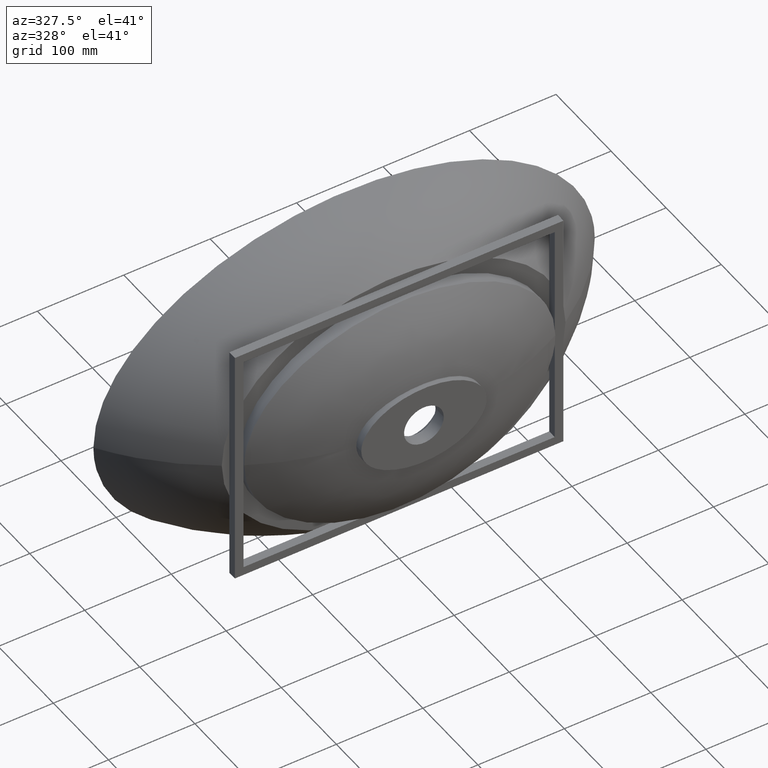
[diagram: clean part render]
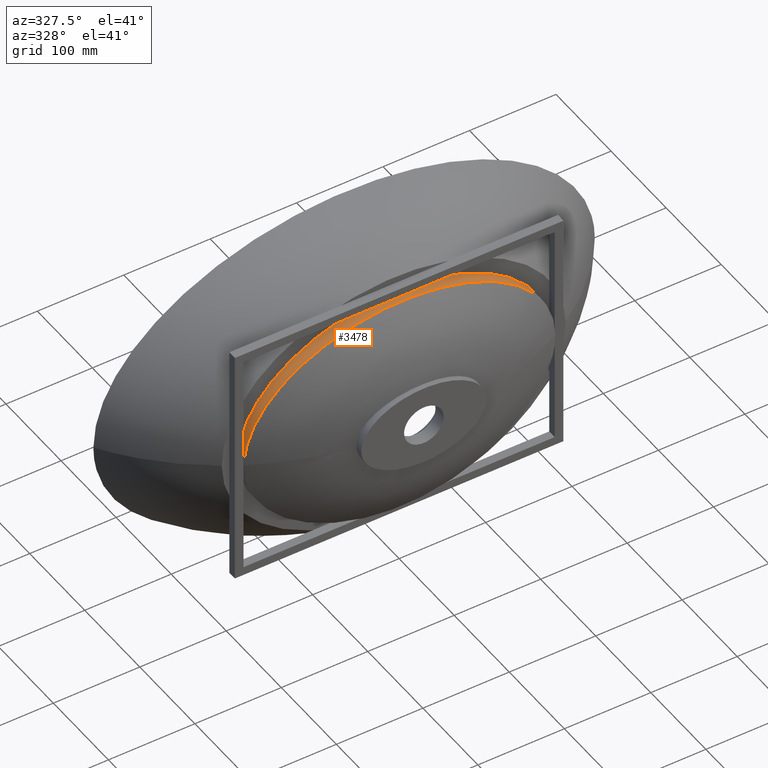
[diagram: same view with one face highlighted and labeled with its STEP entity id]
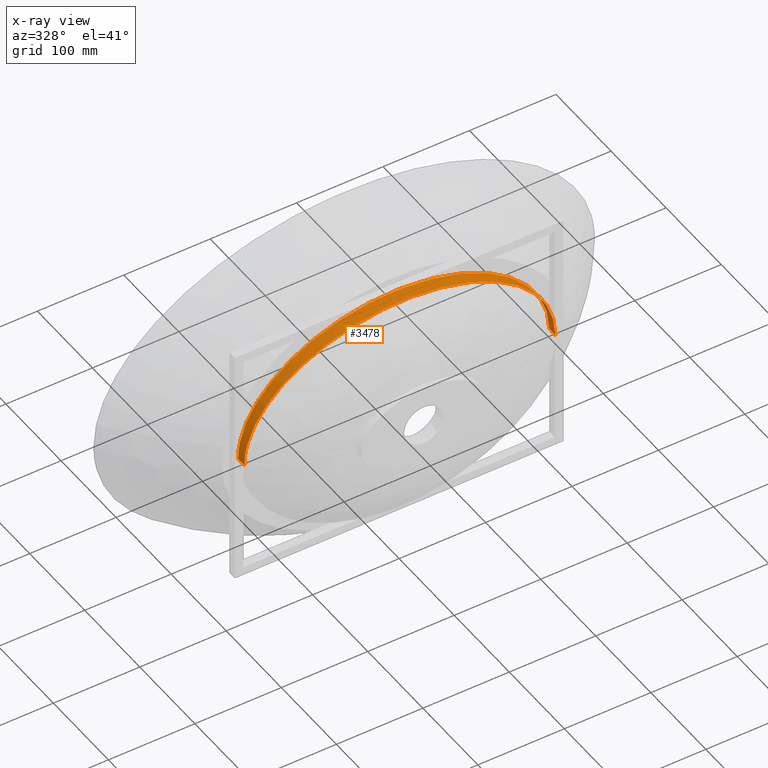
[diagram: x-ray of the same camera — body ghosted, the highlighted face saturated]
A machine part, auxiliary view. The second image highlights one B-rep face of the part: STEP entity #3478.
The next image is the same camera in x-ray: the body ghosted, the highlighted face saturated — about 0% of this face is hidden behind the body in this view.
In plain terms, the highlighted face is a freeform B-spline surface patch.
Its self-contained STEP definition (entity closure, byte-faithful):
#4 = VERTEX_POINT ( 'NONE', #3772 ) ;
#53 = ORIENTED_EDGE ( 'NONE', *, *, #2044, .T. ) ;
#79 = CARTESIAN_POINT ( 'NONE',  ( -180.0000000000001700, -95.56989333808076000, -1.528725063204561300E-014 ) ) ;
#83 = CARTESIAN_POINT ( 'NONE',  ( 175.7154632842174100, -100.4621571564373700, 34.59006907661986200 ) ) ;
#91 = CARTESIAN_POINT ( 'NONE',  ( -90.72556355375027700, -91.23597569220902400, -115.9231261459887500 ) ) ;
#93 = CARTESIAN_POINT ( 'NONE',  ( -179.1916491264617500, -100.2578480365885400, -15.55184997458093900 ) ) ;
#106 = CARTESIAN_POINT ( 'NONE',  ( 175.7494944251472800, -92.85331558812257000, -34.66080013360836900 ) ) ;
#120 = CARTESIAN_POINT ( 'NONE',  ( 182.1252527874266600, -92.75076220950003900, -1.356712098000722500E-010 ) ) ;
#140 = CARTESIAN_POINT ( 'NONE',  ( 175.7239710694492200, -98.55994676435773300, 34.60775184080230800 ) ) ;
#145 = CARTESIAN_POINT ( 'NONE',  ( 90.74366534924344300, -90.00000000000004300, 115.9335179656755200 ) ) ;
#151 = CARTESIAN_POINT ( 'NONE',  ( -157.5619450238705800, -102.3704272196283800, 66.43164022772515400 ) ) ;
#158 = CARTESIAN_POINT ( 'NONE',  ( -179.1931848768636000, -98.39278475721332000, 15.55975315012037200 ) ) ;
#188 = CARTESIAN_POINT ( 'NONE',  ( 47.33615572003558500, -90.00000000000005700, 129.3292097853542700 ) ) ;
#201 = CARTESIAN_POINT ( 'NONE',  ( -174.5012584337427200, -101.4770733436339900, 36.70458853025227300 ) ) ;
#228 = CARTESIAN_POINT ( 'NONE',  ( -90.72556355373461700, -91.23597569221163900, 115.9231261460388300 ) ) ;
#302 = CARTESIAN_POINT ( 'NONE',  ( -179.9999999999998300, -98.35484000712122600, -1.647987302177966700E-014 ) ) ;
#307 = CARTESIAN_POINT ( 'NONE',  ( -180.0000000000001700, -98.35484000712097000, -1.730387592048581200 ) ) ;
#332 = CARTESIAN_POINT ( 'NONE',  ( -179.9363700331559200, -90.92865740094217100, -4.045823004726423200 ) ) ;
#374 = ORIENTED_EDGE ( 'NONE', *, *, #3423, .T. ) ;
#391 = CARTESIAN_POINT ( 'NONE',  ( 90.63505457641083800, -97.41585415324522000, 115.8711670472130900 ) ) ;
#403 = CARTESIAN_POINT ( 'NONE',  ( 175.7154632842214100, -100.4621571564495900, -34.59006907696557000 ) ) ;
#414 = CARTESIAN_POINT ( 'NONE',  ( -174.5062503022387500, -100.5206505649978200, 36.71365888221637900 ) ) ;
#423 = CARTESIAN_POINT ( 'NONE',  ( -179.1993278785008100, -90.93253163968988400, -15.59136585227095200 ) ) ;
#426 = FACE_OUTER_BOUND ( 'NONE', #566, .T. ) ;
#427 = CARTESIAN_POINT ( 'NONE',  ( 47.21882009002048600, -101.8416548802293300, 129.3032463717921700 ) ) ;
#444 = CARTESIAN_POINT ( 'NONE',  ( 157.6998568011472100, -93.09260680489499900, 66.54212359993104500 ) ) ;
#461 = CARTESIAN_POINT ( 'NONE',  ( -90.74366534921649900, -90.00000000000005700, 115.9335179657776400 ) ) ;
#479 = CARTESIAN_POINT ( 'NONE',  ( -157.6079156163115400, -99.27782041470301500, -66.46846801849007100 ) ) ;
#481 = CARTESIAN_POINT ( 'NONE',  ( -180.0000000000000000, -100.2114711198147900, -6.179952383167375300E-015 ) ) ;
#509 = CARTESIAN_POINT ( 'NONE',  ( -180.0000000000001700, -92.78494666904039400, -1.733040006674254800 ) ) ;
#511 = CARTESIAN_POINT ( 'NONE',  ( -90.74366534921649900, -90.00000000000005700, 115.9335179657776400 ) ) ;
#527 = CARTESIAN_POINT ( 'NONE',  ( 128.7159219635056500, -90.00000000000000000, -94.49894374019133600 ) ) ;
#538 = CARTESIAN_POINT ( 'NONE',  ( -180.0000000000000900, -90.00000000000002800, -1.734366213987071200 ) ) ;
#541 = CARTESIAN_POINT ( 'NONE',  ( 157.5772685547476900, -101.3395582846153100, 66.44391615774300400 ) ) ;
#549 = CARTESIAN_POINT ( 'NONE',  ( -174.5561689871985000, -90.95642277863621000, 36.80436240185746000 ) ) ;
#552 = CARTESIAN_POINT ( 'NONE',  ( 5.851848743575899700E-013, -98.09954334406643300, -134.0940495784933500 ) ) ;
#566 = EDGE_LOOP ( 'NONE', ( #3384, #53, #374, #629 ) ) ;
#573 = CARTESIAN_POINT ( 'NONE',  ( -157.6998568011296700, -93.09260680490101000, -66.54212360009081800 ) ) ;
#583 = CARTESIAN_POINT ( 'NONE',  ( 5.740810446090453600E-011, -106.1990866881335800, 134.1027040496849200 ) ) ;
#587 = CARTESIAN_POINT ( 'NONE',  ( -179.9999999999996300, -100.2114711198151000, 1.729503453839970700 ) ) ;
#593 = B_SPLINE_CURVE_WITH_KNOTS ( 'NONE', 3,
 ( #1196, #2966, #2944, #2941, #2933, #2929, #2921 ),
 .UNSPECIFIED., .F., .F.,
 ( 4, 1, 1, 1, 4 ),
 ( 0.4270840971521632800, 0.4407287458203837900, 0.4543733944886043700, 0.4680180431568248800, 0.4816626918250454000 ),
 .UNSPECIFIED. ) ;
#599 = CARTESIAN_POINT ( 'NONE',  ( -157.5619450239026400, -102.3704272196040300, -66.43164022768967000 ) ) ;
#604 = CARTESIAN_POINT ( 'NONE',  ( -174.5461852502132300, -92.86926833590503300, -36.78622169792159000 ) ) ;
#610 = CARTESIAN_POINT ( 'NONE',  ( -180.0000000000000000, -100.2114711198147900, -6.179952383167375300E-015 ) ) ;
#627 = CARTESIAN_POINT ( 'NONE',  ( -157.6538862087208500, -96.18521360980203400, -66.50529580929027400 ) ) ;
#629 = ORIENTED_EDGE ( 'NONE', *, *, #3048, .F. ) ;
#658 = CARTESIAN_POINT ( 'NONE',  ( -90.58074918987945500, -101.1237812299042700, 115.8399915881284100 ) ) ;
#683 = CARTESIAN_POINT ( 'NONE',  ( -179.9360509912102100, -95.57194440565280000, -4.040665531843173700 ) ) ;
#686 = CARTESIAN_POINT ( 'NONE',  ( -90.58074918992846800, -101.1237812298810500, -115.8399915880600200 ) ) ;
#729 = CARTESIAN_POINT ( 'NONE',  ( -179.9999999999998300, -98.35484000712122600, -1.647987302177966700E-014 ) ) ;
#740 = CARTESIAN_POINT ( 'NONE',  ( 157.6079156162840300, -99.27782041473251700, -66.46846801869855900 ) ) ;
#752 = CARTESIAN_POINT ( 'NONE',  ( -157.7305038627356700, -91.03086893496698900, -66.56667546062425300 ) ) ;
#761 = CARTESIAN_POINT ( 'NONE',  ( -179.9999999999999400, -90.00000000000002800, 1.734366213987025700 ) ) ;
#763 = CARTESIAN_POINT ( 'NONE',  ( 90.72556355374614200, -91.23597569221159600, -115.9231261460735900 ) ) ;
#776 = CARTESIAN_POINT ( 'NONE',  ( 4.572407379216915000E-011, -102.1493150161001200, 134.0983768140924300 ) ) ;
#778 = CARTESIAN_POINT ( 'NONE',  ( 90.68935996282706900, -93.70792707662236900, 115.9023425064445400 ) ) ;
#793 = CARTESIAN_POINT ( 'NONE',  ( -179.2000957537033500, -90.00000000000002800, 15.59531744004093700 ) ) ;
#796 = CARTESIAN_POINT ( 'NONE',  ( -90.63505457632527400, -97.41585415326972000, 115.8711670473446700 ) ) ;
#823 = CARTESIAN_POINT ( 'NONE',  ( 179.9999999999999400, -89.99999999999994300, -7.299477223001792000E-010 ) ) ;
#840 = CARTESIAN_POINT ( 'NONE',  ( -47.33615572001483700, -90.00000000000005700, 129.3292097853867200 ) ) ;
#860 = CARTESIAN_POINT ( 'NONE',  ( 175.7580022103788100, -90.95110519604088500, -34.67848289776895900 ) ) ;
#875 = CARTESIAN_POINT ( 'NONE',  ( -179.9363700331554400, -90.92865740094228500, 4.045823004726465800 ) ) ;
#909 = CARTESIAN_POINT ( 'NONE',  ( 128.4670743711715200, -103.6010677630313200, 94.33018502781946800 ) ) ;
#925 = CARTESIAN_POINT ( 'NONE',  ( -90.52644380349538300, -104.8317083065081200, -115.8088161288365800 ) ) ;
#950 = CARTESIAN_POINT ( 'NONE',  ( 128.4878116705342000, -102.4676454494454300, 94.34424825383258900 ) ) ;
#980 = CARTESIAN_POINT ( 'NONE',  ( -128.5914981673082900, -96.80053388152751400, -94.41456438402450100 ) ) ;
#1045 = CARTESIAN_POINT ( 'NONE',  ( -180.0000000000000000, -90.92831555634681700, -7.372574772901430200E-015 ) ) ;
#1047 = CARTESIAN_POINT ( 'NONE',  ( 175.7239710694527200, -98.55994676436773700, -34.60775184112628000 ) ) ;
#1058 = CARTESIAN_POINT ( 'NONE',  ( 90.52644380347911100, -104.8317083065391400, -115.8088161289642700 ) ) ;
#1071 = CARTESIAN_POINT ( 'NONE',  ( -174.5312096447290200, -95.73853667180995300, -36.75901064202818000 ) ) ;
#1074 = CARTESIAN_POINT ( 'NONE',  ( 182.1316336263506600, -95.50152441900026200, -1.527468458331060700E-010 ) ) ;
#1085 = CARTESIAN_POINT ( 'NONE',  ( 2.237335968945833900E-011, -94.04977167203327300, 134.0897223429074900 ) ) ;
#1128 = CARTESIAN_POINT ( 'NONE',  ( 157.7458273935322400, -89.99999999999997200, -66.57895139103656800 ) ) ;
#1138 = CARTESIAN_POINT ( 'NONE',  ( 1.070667625548282000E-011, -90.00000000000008500, 134.0853951073148100 ) ) ;
#1140 = CARTESIAN_POINT ( 'NONE',  ( -180.0000000000004000, -95.56989333808057600, -1.731713799361409800 ) ) ;
#1159 = CARTESIAN_POINT ( 'NONE',  ( 175.7580022103775500, -90.95110519603972000, 34.67848289753197800 ) ) ;
#1196 = CARTESIAN_POINT ( 'NONE',  ( 179.9999999999998900, -101.1397866761614900, -7.627155560823910400E-010 ) ) ;
#1209 = CARTESIAN_POINT ( 'NONE',  ( 175.7112093916013300, -101.4132623524770900, 34.58122769452865700 ) ) ;
#1225 = CARTESIAN_POINT ( 'NONE',  ( -179.1908812512578500, -101.1903796762784100, -15.54789838681193900 ) ) ;
#1272 = CARTESIAN_POINT ( 'NONE',  ( -128.7159219635021800, -90.00000000000002800, 94.49894374011435600 ) ) ;
#1312 = CARTESIAN_POINT ( 'NONE',  ( 47.25793196665192400, -97.89443658682944300, -129.3119008430395000 ) ) ;
#1316 = CARTESIAN_POINT ( 'NONE',  ( 128.5914981672912600, -96.80053388154733800, -94.41456438417436900 ) ) ;
#1329 = CARTESIAN_POINT ( 'NONE',  ( 128.5914981673475400, -96.80053388151587500, 94.41456438389809600 ) ) ;
#1341 = CARTESIAN_POINT ( 'NONE',  ( -47.21882008996965400, -101.8416548802310000, -129.3032463717997000 ) ) ;
#1380 = CARTESIAN_POINT ( 'NONE',  ( 157.5619450238681100, -102.3704272196435200, -66.43164022791916100 ) ) ;
#1392 = CARTESIAN_POINT ( 'NONE',  ( 128.6537100653984000, -93.40026694077346300, -94.45675406218308000 ) ) ;
#1401 = CARTESIAN_POINT ( 'NONE',  ( 175.7622561033006700, -89.99999999999992900, 34.68732427907950500 ) ) ;
#1406 = CARTESIAN_POINT ( 'NONE',  ( -90.68935996277085100, -93.70792707663471800, 115.9023425065613500 ) ) ;
#1431 = B_SPLINE_CURVE_WITH_KNOTS ( 'NONE', 3,
 ( #3037, #4069, #2890, #2877, #2909, #2865, #2844, #2831, #2671, #2646, #2645, #2493, #2588, #2578, #2514, #2565, #2523 ),
 .UNSPECIFIED., .F., .F.,
 ( 4, 1, 1, 1, 1, 1, 1, 1, 1, 1, 1, 1, 1, 1, 4 ),
 ( 0.4999999999999999400, 0.5416666666647493900, 0.5833333333315902100, 0.6249999999984312500, 0.6666666666652723000, 0.7083333333321131200, 0.7499999999999280600, 0.7916666666657951000, 0.8333333333326361500, 0.8749999999994770800, 0.9166666666663179100, 0.9583333333331589500, 0.9916666666666318400, 0.9937499999999738200, 1.000000000000000000 ),
 .UNSPECIFIED. ) ;
#1453 = CARTESIAN_POINT ( 'NONE',  ( 182.1188719485028900, -89.99999999999994300, -1.185435320627593100E-010 ) ) ;
#1470 = CARTESIAN_POINT ( 'NONE',  ( -174.5611608556944800, -90.00000000000002800, 36.81343275382155900 ) ) ;
#1472 = CARTESIAN_POINT ( 'NONE',  ( 47.19274550557273100, -104.4731337425026400, 129.2974767243338500 ) ) ;
#1482 = CARTESIAN_POINT ( 'NONE',  ( -47.33615572002373300, -90.00000000000002800, -129.3292097853594700 ) ) ;
#1492 = CARTESIAN_POINT ( 'NONE',  ( 128.6951846641606800, -91.13342231358596700, 94.48488051396383000 ) ) ;
#1504 = CARTESIAN_POINT ( 'NONE',  ( -180.0000000000000000, -90.00000000000002800, -7.480994990149980600E-015 ) ) ;
#1521 = CARTESIAN_POINT ( 'NONE',  ( -174.5162340392305100, -98.60780500772550300, 36.73179958614461100 ) ) ;
#1544 = CARTESIAN_POINT ( 'NONE',  ( 128.6951846641365800, -91.13342231359121100, -94.48488051418851800 ) ) ;
#1630 = CARTESIAN_POINT ( 'NONE',  ( -47.25793196665443200, -97.89443658682098700, -129.3119008429860600 ) ) ;
#1689 = CARTESIAN_POINT ( 'NONE',  ( 157.6538862087474800, -96.18521360979029600, 66.50529580911039300 ) ) ;
#1698 = CARTESIAN_POINT ( 'NONE',  ( -179.9999999999998600, -92.78494666904056500, 1.733040006674180700 ) ) ;
#1710 = CARTESIAN_POINT ( 'NONE',  ( 182.1443953041980400, -101.0030488380003800, -1.869570984973563100E-010 ) ) ;
#1712 = CARTESIAN_POINT ( 'NONE',  ( -128.4878116704282100, -102.4676454494952900, 94.34424825404271100 ) ) ;
#1723 = CARTESIAN_POINT ( 'NONE',  ( 90.63505457635210400, -97.41585415326979100, -115.8711670473874300 ) ) ;
#1725 = CARTESIAN_POINT ( 'NONE',  ( 47.29704384333739900, -93.94721829341443700, -129.3205553142205100 ) ) ;
#1731 = CARTESIAN_POINT ( 'NONE',  ( 179.9999999999999400, -89.99999999999994300, -7.299477223001792000E-010 ) ) ;
#1737 = CARTESIAN_POINT ( 'NONE',  ( -128.6537100654096000, -93.40026694076367200, -94.45675406204998100 ) ) ;
#1741 = CARTESIAN_POINT ( 'NONE',  ( -179.9357319492641200, -100.2152314103635400, -4.035508058959917900 ) ) ;
#1748 = CARTESIAN_POINT ( 'NONE',  ( 1.070667625548282000E-011, -90.00000000000008500, 134.0853951073148100 ) ) ;
#1777 = CARTESIAN_POINT ( 'NONE',  ( -128.5914981672801200, -96.80053388154297500, 94.41456438407519200 ) ) ;
#1786 = CARTESIAN_POINT ( 'NONE',  ( 175.7622561029945400, -89.99999999999998600, -34.68732427984929200 ) ) ;
#1797 = CARTESIAN_POINT ( 'NONE',  ( 47.17970821328089700, -105.7888731736583900, -129.2945919006783100 ) ) ;
#1799 = CARTESIAN_POINT ( 'NONE',  ( 90.54454559905016700, -103.5957326142824700, 115.8192079484946200 ) ) ;
#1810 = CARTESIAN_POINT ( 'NONE',  ( 157.5772685546734800, -101.3395582846732300, -66.44391615817893600 ) ) ;
#1823 = CARTESIAN_POINT ( 'NONE',  ( 47.32311842781169300, -91.31573943113664900, 129.3263249616251500 ) ) ;
#1833 = CARTESIAN_POINT ( 'NONE',  ( -179.2000957537047200, -90.00000000000001400, -15.59531744003995300 ) ) ;
#1852 = CARTESIAN_POINT ( 'NONE',  ( -180.0000000000000000, -92.78494666904048000, -2.179246366695863900E-014 ) ) ;
#1859 = EDGE_CURVE ( 'NONE', #3724, #4, #1431, .T. ) ;
#1888 = CARTESIAN_POINT ( 'NONE',  ( -179.9999999999999700, -101.1397866761616100, -6.071532165918824800E-015 ) ) ;
#1945 = CARTESIAN_POINT ( 'NONE',  ( -179.1954885024771600, -95.59518983814216100, 15.57160791342719500 ) ) ;
#1954 = CARTESIAN_POINT ( 'NONE',  ( -180.0000000000000000, -90.00000000000002800, -7.480994990149980600E-015 ) ) ;
#1959 = B_SPLINE_CURVE_WITH_KNOTS ( 'NONE', 3,
 ( #1731, #4016, #1401, #3291, #2385, #145, #2082, #1748, #2248, #461, #1272, #3146, #3512, #793, #2676, #2971, #1954 ),
 .UNSPECIFIED., .F., .F.,
 ( 4, 1, 1, 1, 1, 1, 1, 1, 1, 1, 1, 1, 1, 1, 4 ),
 ( 0.4999999999999605900, 0.5416666666647134100, 0.5833333333315574600, 0.6249999999984017200, 0.6666666666652461000, 0.7083333333320902500, 0.7499999999999084100, 0.7916666666657787800, 0.8333333333326230500, 0.8749999999994672000, 0.9166666666663114700, 0.9583333333331558500, 0.9916666666666311700, 0.9937499999999733800, 1.000000000000000000 ),
 .UNSPECIFIED. ) ;
#1990 = CARTESIAN_POINT ( 'NONE',  ( -174.5062503022548100, -100.5206505649849600, -36.71365888220606900 ) ) ;
#1999 = CARTESIAN_POINT ( 'NONE',  ( -179.1993278784989600, -90.93253163969039600, 15.59136585227198400 ) ) ;
#2002 = CARTESIAN_POINT ( 'NONE',  ( 175.7367327473002700, -95.70663117624532400, -34.63427598736722500 ) ) ;
#2009 = CARTESIAN_POINT ( 'NONE',  ( -180.0000000000000000, -90.00000000000002800, -7.480994990149980600E-015 ) ) ;
#2010 = CARTESIAN_POINT ( 'NONE',  ( -180.0000000000000000, -90.92831555634681700, -7.372574772901430200E-015 ) ) ;
#2014 = CARTESIAN_POINT ( 'NONE',  ( -128.4878116704724100, -102.4676454494669100, -94.34424825398257000 ) ) ;
#2021 = CARTESIAN_POINT ( 'NONE',  ( -180.0000000000000000, -92.78494666904048000, -2.179246366695863900E-014 ) ) ;
#2026 = CARTESIAN_POINT ( 'NONE',  ( -174.5461852502065500, -92.86926833590857200, 36.78622169792927100 ) ) ;
#2037 = CARTESIAN_POINT ( 'NONE',  ( -180.0000000000001700, -95.56989333808076000, -1.528725063204561300E-014 ) ) ;
#2041 = CARTESIAN_POINT ( 'NONE',  ( -179.9999999999998300, -98.35484000712122600, -1.647987302177966700E-014 ) ) ;
#2043 = CARTESIAN_POINT ( 'NONE',  ( -179.9999999999999700, -101.1397866761616100, -6.071532165918824800E-015 ) ) ;
#2044 = EDGE_CURVE ( 'NONE', #3724, #3721, #593, .T. ) ;
#2045 = CARTESIAN_POINT ( 'NONE',  ( -47.19274550551325100, -104.4731337425046900, -129.2974767243418100 ) ) ;
#2053 = CARTESIAN_POINT ( 'NONE',  ( -180.0000000000000000, -100.2114711198147900, -6.179952383167375300E-015 ) ) ;
#2057 = CARTESIAN_POINT ( 'NONE',  ( -47.29704384333903300, -93.94721829341024500, -129.3205553141730800 ) ) ;
#2070 = CARTESIAN_POINT ( 'NONE',  ( -179.9356681408730500, -101.1438888113072400, 4.034476564383357600 ) ) ;
#2076 = CARTESIAN_POINT ( 'NONE',  ( -179.9357319492623600, -100.2152314103649500, 4.035508058960004100 ) ) ;
#2081 = CARTESIAN_POINT ( 'NONE',  ( -179.9999999999999700, -101.1397866761616100, -6.071532165918824800E-015 ) ) ;
#2082 = CARTESIAN_POINT ( 'NONE',  ( 47.33615572003558500, -90.00000000000005700, 129.3292097853542700 ) ) ;
#2084 = CARTESIAN_POINT ( 'NONE',  ( -180.0000000000000000, -90.00000000000002800, -7.480994990149980600E-015 ) ) ;
#2088 = CARTESIAN_POINT ( 'NONE',  ( -128.4670743710578300, -103.6010677630857800, 94.33018502803619800 ) ) ;
#2097 = CARTESIAN_POINT ( 'NONE',  ( -47.21882008993176100, -101.8416548802420500, 129.3032463718386700 ) ) ;
#2114 = CARTESIAN_POINT ( 'NONE',  ( 157.7458273935470500, -89.99999999999998600, 66.57895139075144200 ) ) ;
#2127 = CARTESIAN_POINT ( 'NONE',  ( -90.52644380343385000, -104.8317083065390800, 115.8088161289119300 ) ) ;
#2149 = CARTESIAN_POINT ( 'NONE',  ( -47.32311842778339200, -91.31573943113805600, 129.3263249616591700 ) ) ;
#2160 = CARTESIAN_POINT ( 'NONE',  ( -174.5611608556976400, -90.00000000000000000, -36.81343275381481600 ) ) ;
#2194 = CARTESIAN_POINT ( 'NONE',  ( -179.9358595660423200, -98.35791660847928600, -4.037571048113232300 ) ) ;
#2199 = CARTESIAN_POINT ( 'NONE',  ( -179.2000957537033500, -90.00000000000002800, 15.59531744004093700 ) ) ;
#2225 = CARTESIAN_POINT ( 'NONE',  ( -157.6538862087018100, -96.18521360981421300, 66.50529580931926400 ) ) ;
#2248 = CARTESIAN_POINT ( 'NONE',  ( -47.33615572001483700, -90.00000000000005700, 129.3292097853867200 ) ) ;
#2293 = CARTESIAN_POINT ( 'NONE',  ( 47.19274550550940700, -104.4731337425201900, -129.2974767244052100 ) ) ;
#2329 = CARTESIAN_POINT ( 'NONE',  ( 5.351227108900872200E-011, -104.8491627974557900, 134.1012616378207000 ) ) ;
#2337 = CARTESIAN_POINT ( 'NONE',  ( 2.551877226037037500E-013, -91.34992389067767200, -134.0868375191738000 ) ) ;
#2339 = CARTESIAN_POINT ( 'NONE',  ( -179.1916491264549600, -100.2578480365940300, 15.55184997458247100 ) ) ;
#2348 = CARTESIAN_POINT ( 'NONE',  ( 157.6998568011161700, -93.09260680491077300, -66.54212360025735500 ) ) ;
#2359 = CARTESIAN_POINT ( 'NONE',  ( 175.7494944251455100, -92.85331558811920200, 34.66080013334958900 ) ) ;
#2379 = CARTESIAN_POINT ( 'NONE',  ( 128.5292862692593900, -100.2008008222734200, 94.37237470585888800 ) ) ;
#2385 = CARTESIAN_POINT ( 'NONE',  ( 128.7159219635233600, -90.00000000000001400, 94.49894373997693700 ) ) ;
#2390 = CARTESIAN_POINT ( 'NONE',  ( -179.1908812512505200, -101.1903796762843900, 15.54789838681351800 ) ) ;
#2394 = CARTESIAN_POINT ( 'NONE',  ( 157.6079156163474100, -99.27782041468515200, 66.46846801829002500 ) ) ;
#2419 = CARTESIAN_POINT ( 'NONE',  ( 90.74366534924344300, -90.00000000000004300, 115.9335179656755200 ) ) ;
#2432 = CARTESIAN_POINT ( 'NONE',  ( -47.17970821323743300, -105.7888731736561400, 129.2945919006558900 ) ) ;
#2444 = CARTESIAN_POINT ( 'NONE',  ( -128.7159219635110200, -90.00000000000000000, -94.49894374007504900 ) ) ;
#2454 = CARTESIAN_POINT ( 'NONE',  ( -157.7305038627275200, -91.03086893496907800, 66.56667546064785800 ) ) ;
#2493 = CARTESIAN_POINT ( 'NONE',  ( -157.5619450238705800, -102.3704272196283800, 66.43164022772515400 ) ) ;
#2514 = CARTESIAN_POINT ( 'NONE',  ( -179.9356681408730500, -101.1438888113072400, 4.034476564383357600 ) ) ;
#2523 = CARTESIAN_POINT ( 'NONE',  ( -179.9999999999999700, -101.1397866761616100, -6.071532165918824800E-015 ) ) ;
#2565 = CARTESIAN_POINT ( 'NONE',  ( -179.9999999999995700, -101.1397866761619500, 1.729061384735692800 ) ) ;
#2578 = CARTESIAN_POINT ( 'NONE',  ( -179.1908812512505200, -101.1903796762843900, 15.54789838681351800 ) ) ;
#2588 = CARTESIAN_POINT ( 'NONE',  ( -174.5012584337427200, -101.4770733436339900, 36.70458853025227300 ) ) ;
#2591 = CARTESIAN_POINT ( 'NONE',  ( -47.25793196662617400, -97.89443658682833400, 129.3119008430212200 ) ) ;
#2613 = CARTESIAN_POINT ( 'NONE',  ( -174.5312096447187600, -95.73853667181698800, 36.75901064203687000 ) ) ;
#2617 = CARTESIAN_POINT ( 'NONE',  ( 182.1422683578901500, -100.0861281015003900, -1.812559679611397800E-010 ) ) ;
#2627 = CARTESIAN_POINT ( 'NONE',  ( 47.21882008996637800, -101.8416548802436500, -129.3032463718590700 ) ) ;
#2637 = CARTESIAN_POINT ( 'NONE',  ( -174.5561689872028500, -90.95642277863500200, -36.80436240185038300 ) ) ;
#2638 = CARTESIAN_POINT ( 'NONE',  ( 90.58074918999433600, -101.1237812298673600, 115.8399915879821400 ) ) ;
#2645 = CARTESIAN_POINT ( 'NONE',  ( -128.4670743710578300, -103.6010677630857800, 94.33018502803619800 ) ) ;
#2646 = CARTESIAN_POINT ( 'NONE',  ( -90.52644380343385000, -104.8317083065390800, 115.8088161289119300 ) ) ;
#2661 = CARTESIAN_POINT ( 'NONE',  ( 128.6537100654353800, -93.40026694075774600, 94.45675406193771600 ) ) ;
#2671 = CARTESIAN_POINT ( 'NONE',  ( -47.17970821323743300, -105.7888731736561400, 129.2945919006558900 ) ) ;
#2676 = CARTESIAN_POINT ( 'NONE',  ( -179.9364338415447300, -90.00000000000002800, 4.046854499303111500 ) ) ;
#2694 = CARTESIAN_POINT ( 'NONE',  ( -180.0000000000003700, -100.2114711198144900, -1.729503453840013600 ) ) ;
#2699 = CARTESIAN_POINT ( 'NONE',  ( -179.9999999999995200, -98.35484000712146700, 1.730387592048517200 ) ) ;
#2724 = CARTESIAN_POINT ( 'NONE',  ( 128.7159219635233600, -90.00000000000001400, 94.49894373997693700 ) ) ;
#2743 = CARTESIAN_POINT ( 'NONE',  ( 157.7305038627269200, -91.03086893497030000, -66.56667546077677900 ) ) ;
#2755 = CARTESIAN_POINT ( 'NONE',  ( -128.6951846641318300, -91.13342231359050100, 94.48488051410784300 ) ) ;
#2782 = CARTESIAN_POINT ( 'NONE',  ( 90.52644380357804700, -104.8317083064899300, 115.8088161287509100 ) ) ;
#2798 = CARTESIAN_POINT ( 'NONE',  ( -128.4670743711052100, -103.6010677630548000, -94.33018502797418100 ) ) ;
#2831 = CARTESIAN_POINT ( 'NONE',  ( 5.740810446090453600E-011, -106.1990866881335800, 134.1027040496849200 ) ) ;
#2844 = CARTESIAN_POINT ( 'NONE',  ( 47.17970821334883200, -105.7888731736392000, 129.2945919006047000 ) ) ;
#2865 = CARTESIAN_POINT ( 'NONE',  ( 90.52644380357804700, -104.8317083064899300, 115.8088161287509100 ) ) ;
#2866 = CARTESIAN_POINT ( 'NONE',  ( -174.5162340392442700, -98.60780500771498700, -36.73179958613496900 ) ) ;
#2877 = CARTESIAN_POINT ( 'NONE',  ( 157.5619450239476900, -102.3704272195802900, 66.43164022746951500 ) ) ;
#2882 = CARTESIAN_POINT ( 'NONE',  ( 8.192654137102396300E-013, -102.1493150160991400, -134.0983768140854700 ) ) ;
#2890 = CARTESIAN_POINT ( 'NONE',  ( 175.7112093919050400, -101.4132623524610800, 34.58122769399570700 ) ) ;
#2891 = CARTESIAN_POINT ( 'NONE',  ( -179.9999999999999400, -95.56989333808094500, 1.731713799361348500 ) ) ;
#2892 = CARTESIAN_POINT ( 'NONE',  ( 128.5292862691838700, -100.2008008223206200, -94.37237470616611300 ) ) ;
#2909 = CARTESIAN_POINT ( 'NONE',  ( 128.4670743711715200, -103.6010677630313200, 94.33018502781946800 ) ) ;
#2915 = VERTEX_POINT ( 'NONE', #2084 ) ;
#2921 = CARTESIAN_POINT ( 'NONE',  ( 179.9999999999999400, -89.99999999999994300, -7.299477223001792000E-010 ) ) ;
#2923 = CARTESIAN_POINT ( 'NONE',  ( -180.0000000000000000, -92.78494666904048000, -2.179246366695863900E-014 ) ) ;
#2929 = CARTESIAN_POINT ( 'NONE',  ( 179.9999999999999400, -90.92831555634678900, -7.026014577882987700E-010 ) ) ;
#2933 = CARTESIAN_POINT ( 'NONE',  ( 179.9999999999999400, -92.78494666904032300, -7.135552645661661700E-010 ) ) ;
#2934 = CARTESIAN_POINT ( 'NONE',  ( -179.9362424163768100, -92.78597220282688300, 4.043760015573164800 ) ) ;
#2941 = CARTESIAN_POINT ( 'NONE',  ( 180.0000000000001100, -95.56989333808083100, -7.299226573260913700E-010 ) ) ;
#2944 = CARTESIAN_POINT ( 'NONE',  ( 179.9999999999997400, -98.35484000712105500, -7.463273466407527700E-010 ) ) ;
#2959 = CARTESIAN_POINT ( 'NONE',  ( 47.29704384336388000, -93.94721829340967600, 129.3205553141670500 ) ) ;
#2966 = CARTESIAN_POINT ( 'NONE',  ( 179.9999999999999100, -100.2114711198147500, -7.572490610343133500E-010 ) ) ;
#2971 = CARTESIAN_POINT ( 'NONE',  ( -179.9999999999999400, -90.00000000000002800, 1.734366213987025700 ) ) ;
#2974 = CARTESIAN_POINT ( 'NONE',  ( -157.6079156162859900, -99.27782041472130500, 66.46846801852230200 ) ) ;
#3012 = CARTESIAN_POINT ( 'NONE',  ( -128.7159219635021800, -90.00000000000002800, 94.49894374011435600 ) ) ;
#3022 = CARTESIAN_POINT ( 'NONE',  ( 47.33615572002290900, -90.00000000000001400, -129.3292097854009100 ) ) ;
#3035 = CARTESIAN_POINT ( 'NONE',  ( 182.1209988948108100, -90.91692073650001800, -1.242446625989758700E-010 ) ) ;
#3037 = CARTESIAN_POINT ( 'NONE',  ( 179.9999999999998900, -101.1397866761614900, -7.627155560823910400E-010 ) ) ;
#3048 = EDGE_CURVE ( 'NONE', #4, #2915, #3660, .T. ) ;
#3049 = CARTESIAN_POINT ( 'NONE',  ( -179.9999999999999100, -90.92831555634684500, 1.733924144882748000 ) ) ;
#3071 = CARTESIAN_POINT ( 'NONE',  ( -179.1931848768694200, -98.39278475720883000, -15.55975315011896300 ) ) ;
#3082 = CARTESIAN_POINT ( 'NONE',  ( 157.5619450239476900, -102.3704272195802900, 66.43164022746951500 ) ) ;
#3087 = CARTESIAN_POINT ( 'NONE',  ( -179.9362424163775800, -92.78597220282650000, -4.043760015573142600 ) ) ;
#3096 = CARTESIAN_POINT ( 'NONE',  ( -179.9356681408749200, -101.1438888113056700, -4.034476564383267000 ) ) ;
#3113 = CARTESIAN_POINT ( 'NONE',  ( -180.0000000000003400, -101.1397866761612800, -1.729061384735735700 ) ) ;
#3127 = CARTESIAN_POINT ( 'NONE',  ( -90.63505457636181000, -97.41585415325427300, -115.8711670472831100 ) ) ;
#3146 = CARTESIAN_POINT ( 'NONE',  ( -157.7458273935326900, -90.00000000000004300, 66.57895139091354500 ) ) ;
#3233 = CARTESIAN_POINT ( 'NONE',  ( 90.54454559895795300, -103.5957326143275500, -115.8192079487014800 ) ) ;
#3249 = CARTESIAN_POINT ( 'NONE',  ( -180.0000000000001100, -90.92831555634678900, -1.733924144882793600 ) ) ;
#3252 = CARTESIAN_POINT ( 'NONE',  ( 182.1380144652741300, -98.25228662850020100, -1.698606457826109800E-010 ) ) ;
#3265 = CARTESIAN_POINT ( 'NONE',  ( 128.4670743710766500, -103.6010677630943200, -94.33018502815758700 ) ) ;
#3291 = CARTESIAN_POINT ( 'NONE',  ( 157.7458273935470500, -89.99999999999998600, 66.57895139075144200 ) ) ;
#3296 = CARTESIAN_POINT ( 'NONE',  ( -47.29704384332048800, -93.94721829341392500, 129.3205553142042000 ) ) ;
#3306 = CARTESIAN_POINT ( 'NONE',  ( 179.9999999999998900, -101.1397866761614900, -7.627155560823910400E-010 ) ) ;
#3362 = CARTESIAN_POINT ( 'NONE',  ( -157.7458273935326900, -90.00000000000004300, 66.57895139091354500 ) ) ;
#3365 = CARTESIAN_POINT ( 'NONE',  ( -179.9358595660407900, -98.35791660848043700, 4.037571048113290000 ) ) ;
#3376 = CARTESIAN_POINT ( 'NONE',  ( 47.25793196669226100, -97.89443658681987900, 129.3119008429793300 ) ) ;
#3384 = ORIENTED_EDGE ( 'NONE', *, *, #1859, .F. ) ;
#3386 = CARTESIAN_POINT ( 'NONE',  ( 157.7305038627471000, -91.03086893496502800, 66.56667546047795300 ) ) ;
#3403 = CARTESIAN_POINT ( 'NONE',  ( -180.0000000000000000, -90.92831555634681700, -7.372574772901430200E-015 ) ) ;
#3423 = EDGE_CURVE ( 'NONE', #3721, #2915, #1959, .T. ) ;
#3446 = CARTESIAN_POINT ( 'NONE',  ( -128.6951846641439100, -91.13342231358788600, -94.48488051406663100 ) ) ;
#3466 = CARTESIAN_POINT ( 'NONE',  ( -174.5012584337600000, -101.4770733436199600, -36.70458853024163700 ) ) ;
#3478 = ADVANCED_FACE ( 'NONE', ( #426 ), #3793, .T. ) ;
#3512 = CARTESIAN_POINT ( 'NONE',  ( -174.5611608556944800, -90.00000000000002800, 36.81343275382155900 ) ) ;
#3521 = CARTESIAN_POINT ( 'NONE',  ( 47.17970821334883200, -105.7888731736392000, 129.2945919006047000 ) ) ;
#3550 = CARTESIAN_POINT ( 'NONE',  ( -179.9360509912091000, -95.57194440565358200, 4.040665531843220700 ) ) ;
#3608 = CARTESIAN_POINT ( 'NONE',  ( 47.32311842779440500, -91.31573943113818400, -129.3263249616740300 ) ) ;
#3623 = CARTESIAN_POINT ( 'NONE',  ( 175.7112093916056500, -101.4132623524904300, -34.58122769488522900 ) ) ;
#3628 = CARTESIAN_POINT ( 'NONE',  ( -157.5772685546757800, -101.3395582846593500, 66.44391615799085600 ) ) ;
#3636 = CARTESIAN_POINT ( 'NONE',  ( 90.68935996278848700, -93.70792707663463300, -115.9023425065994000 ) ) ;
#3651 = CARTESIAN_POINT ( 'NONE',  ( -128.6537100653911000, -93.40026694077143100, 94.45675406209495900 ) ) ;
#3660 = B_SPLINE_CURVE_WITH_KNOTS ( 'NONE', 3,
 ( #2081, #2053, #2041, #2037, #2021, #2010, #2009 ),
 .UNSPECIFIED., .F., .F.,
 ( 4, 1, 1, 1, 4 ),
 ( 0.4270840971521632800, 0.4407287458203837900, 0.4543733944886043700, 0.4680180431568248800, 0.4816626918250454000 ),
 .UNSPECIFIED. ) ;
#3676 = CARTESIAN_POINT ( 'NONE',  ( -128.5292862691688400, -100.2008008223143200, 94.37237470605580800 ) ) ;
#3705 = CARTESIAN_POINT ( 'NONE',  ( 90.74366534922495500, -89.99999999999998600, -115.9335179658108100 ) ) ;
#3718 = CARTESIAN_POINT ( 'NONE',  ( -179.9364338415447300, -90.00000000000002800, 4.046854499303111500 ) ) ;
#3721 = VERTEX_POINT ( 'NONE', #823 ) ;
#3722 = CARTESIAN_POINT ( 'NONE',  ( 9.498764956310123300E-013, -104.8491627974546700, -134.1012616378132200 ) ) ;
#3724 = VERTEX_POINT ( 'NONE', #3306 ) ;
#3732 = CARTESIAN_POINT ( 'NONE',  ( 1.864127346913646000E-013, -90.00000000000000000, -134.0853951073098600 ) ) ;
#3738 = CARTESIAN_POINT ( 'NONE',  ( -179.1954885024814500, -95.59518983813916300, -15.57160791342593400 ) ) ;
#3747 = CARTESIAN_POINT ( 'NONE',  ( 90.72556355377132300, -91.23597569220751800, 115.9231261459318000 ) ) ;
#3761 = CARTESIAN_POINT ( 'NONE',  ( -179.9364338415451000, -90.00000000000002800, -4.046854499303073300 ) ) ;
#3772 = CARTESIAN_POINT ( 'NONE',  ( -179.9999999999999700, -101.1397866761616100, -6.071532165918824800E-015 ) ) ;
#3793 = B_SPLINE_SURFACE_WITH_KNOTS ( 'NONE', 3, 3, ( 
 ( #1888, #3113, #3096, #1225, #3466, #599, #2798, #925, #4042, #4086, #1797, #1058, #3265, #1380, #3623, #1710, #1209, #3082, #909, #2782, #3521, #583, #2432, #2127, #2088, #151, #201, #2390, #2070, #3859, #2043 ),
 ( #481, #2694, #1741, #93, #1990, #3970, #2014, #4029, #2045, #3722, #2293, #3233, #4047, #1810, #403, #2617, #83, #541, #950, #1799, #1472, #2329, #3996, #4141, #1712, #3628, #414, #2339, #2076, #587, #610 ),
 ( #302, #307, #2194, #3071, #2866, #479, #4102, #686, #1341, #2882, #2627, #4198, #2892, #740, #1047, #3252, #140, #2394, #2379, #2638, #427, #776, #2097, #658, #3676, #2974, #1521, #158, #3365, #2699, #729 ),
 ( #4225, #1140, #683, #3738, #1071, #627, #980, #3127, #1630, #552, #1312, #1723, #1316, #3952, #2002, #1074, #3917, #1689, #1329, #391, #3376, #4172, #2591, #796, #1777, #2225, #2613, #1945, #3550, #2891, #79 ),
 ( #1852, #509, #3087, #3817, #604, #573, #1737, #4023, #2057, #4006, #1725, #3636, #1392, #2348, #106, #120, #2359, #444, #2661, #778, #2959, #1085, #3296, #1406, #3651, #3980, #2026, #3992, #2934, #1698, #2923 ),
 ( #1045, #3249, #332, #423, #2637, #752, #3446, #91, #3810, #2337, #3608, #763, #1544, #2743, #860, #3035, #1159, #3386, #1492, #3747, #1823, #4111, #2149, #228, #2755, #2454, #549, #1999, #875, #3049, #3403 ),
 ( #1504, #538, #3761, #1833, #2160, #4123, #2444, #4099, #1482, #3732, #3022, #3705, #527, #1128, #1786, #1453, #4072, #2114, #2724, #2419, #188, #1138, #840, #511, #3012, #3362, #1470, #2199, #3718, #761, #4193 ) ),
 .UNSPECIFIED., .F., .T., .F.,
 ( 4, 1, 1, 1, 4 ),
 ( 4, 1, 1, 1, 1, 1, 1, 1, 1, 1, 1, 1, 1, 1, 1, 1, 1, 1, 1, 1, 1, 1, 1, 1, 1, 1, 1, 1, 4 ),
 ( 0.4270840971521632800, 0.4407287458203837900, 0.4543733944886043700, 0.4680180431568248800, 0.4816626918250454000 ),
 ( 0.0000000000000000000, 0.006250000000000088800, 0.008333333333333303700, 0.04166666666666663000, 0.08333333333333337000, 0.1250000000000001100, 0.1666666666666666300, 0.2083333333333333700, 0.2500000000000000000, 0.2916666666666666300, 0.3333333333333333700, 0.3750000000000000000, 0.4166666666666666300, 0.4583333333333333700, 0.5000000000020915500, 0.5416666666666667400, 0.5833333333333332600, 0.6250000000000000000, 0.6666666666666667400, 0.7083333333333332600, 0.7500000000009738900, 0.7916666666666666300, 0.8333333333333333700, 0.8750000000000000000, 0.9166666666666666300, 0.9583333333333333700, 0.9916666666666667000, 0.9937500000000000200, 1.000000000000000000 ),
 .UNSPECIFIED. ) ;
#3810 = CARTESIAN_POINT ( 'NONE',  ( -47.32311842779551400, -91.31573943113680500, -129.3263249616306000 ) ) ;
#3817 = CARTESIAN_POINT ( 'NONE',  ( -179.1977921280930000, -92.79759491906966700, -15.58346267673298900 ) ) ;
#3859 = CARTESIAN_POINT ( 'NONE',  ( -179.9999999999995700, -101.1397866761619500, 1.729061384735692800 ) ) ;
#3917 = CARTESIAN_POINT ( 'NONE',  ( 175.7367327472976200, -95.70663117623863100, 34.63427598707588800 ) ) ;
#3952 = CARTESIAN_POINT ( 'NONE',  ( 157.6538862087003300, -96.18521360982187200, -66.50529580947780100 ) ) ;
#3970 = CARTESIAN_POINT ( 'NONE',  ( -157.5772685547056800, -101.3395582846370400, -66.44391615795645100 ) ) ;
#3980 = CARTESIAN_POINT ( 'NONE',  ( -157.6998568011171600, -93.09260680490713500, 66.54212360011654000 ) ) ;
#3992 = CARTESIAN_POINT ( 'NONE',  ( -179.1977921280901900, -92.79759491907117300, 15.58346267673408800 ) ) ;
#3996 = CARTESIAN_POINT ( 'NONE',  ( -47.19274550546889900, -104.4731337425181400, 129.2974767243834700 ) ) ;
#4006 = CARTESIAN_POINT ( 'NONE',  ( 3.996765923322925200E-013, -94.04977167203290400, -134.0897223429019200 ) ) ;
#4016 = CARTESIAN_POINT ( 'NONE',  ( 180.0000000001101300, -89.99999999999994300, 11.56244142585975400 ) ) ;
#4023 = CARTESIAN_POINT ( 'NONE',  ( -90.68935996279483900, -93.70792707662695900, -115.9023425065067400 ) ) ;
#4029 = CARTESIAN_POINT ( 'NONE',  ( -90.54454559897313000, -103.5957326142991400, -115.8192079485777000 ) ) ;
#4042 = CARTESIAN_POINT ( 'NONE',  ( -47.17970821328502500, -105.7888731736414500, -129.2945919006129400 ) ) ;
#4047 = CARTESIAN_POINT ( 'NONE',  ( 128.4878116704457500, -102.4676454495031200, -94.34424825416039100 ) ) ;
#4069 = CARTESIAN_POINT ( 'NONE',  ( 180.0000000001068100, -101.1397866761524300, 11.52707589747292300 ) ) ;
#4072 = CARTESIAN_POINT ( 'NONE',  ( 175.7622561029935500, -89.99999999999992900, 34.68732427962318400 ) ) ;
#4086 = CARTESIAN_POINT ( 'NONE',  ( 1.011712589639445900E-012, -106.1990866881323500, -134.1027040496771300 ) ) ;
#4099 = CARTESIAN_POINT ( 'NONE',  ( -90.74366534922798200, -90.00000000000002800, -115.9335179657298600 ) ) ;
#4102 = CARTESIAN_POINT ( 'NONE',  ( -128.5292862692065800, -100.2008008222910600, -94.37237470599947600 ) ) ;
#4111 = CARTESIAN_POINT ( 'NONE',  ( 1.459904018042667900E-011, -91.34992389067787100, 134.0868375191790000 ) ) ;
#4123 = CARTESIAN_POINT ( 'NONE',  ( -157.7458273935386900, -90.00000000000000000, -66.57895139089103500 ) ) ;
#4141 = CARTESIAN_POINT ( 'NONE',  ( -90.54454559891576100, -103.5957326143275200, 115.8192079486507300 ) ) ;
#4172 = CARTESIAN_POINT ( 'NONE',  ( 3.406779869904948900E-011, -98.09954334406708700, 134.0940495784997200 ) ) ;
#4193 = CARTESIAN_POINT ( 'NONE',  ( -180.0000000000000000, -90.00000000000002800, -7.480994990149980600E-015 ) ) ;
#4198 = CARTESIAN_POINT ( 'NONE',  ( 90.58074918991553700, -101.1237812299042100, -115.8399915881759900 ) ) ;
#4225 = CARTESIAN_POINT ( 'NONE',  ( -180.0000000000001700, -95.56989333808076000, -1.528725063204561300E-014 ) ) ;